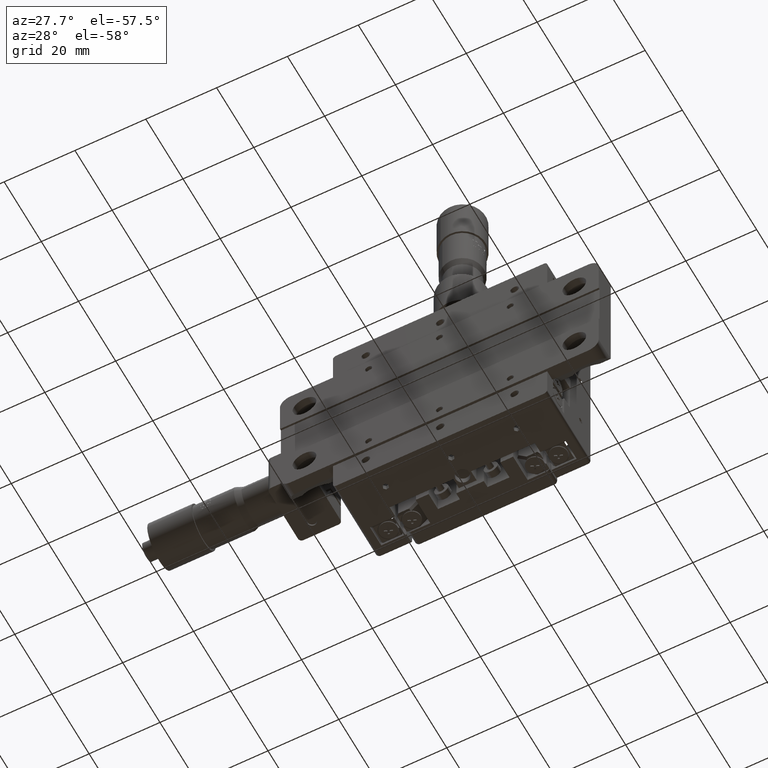
[diagram: clean part render]
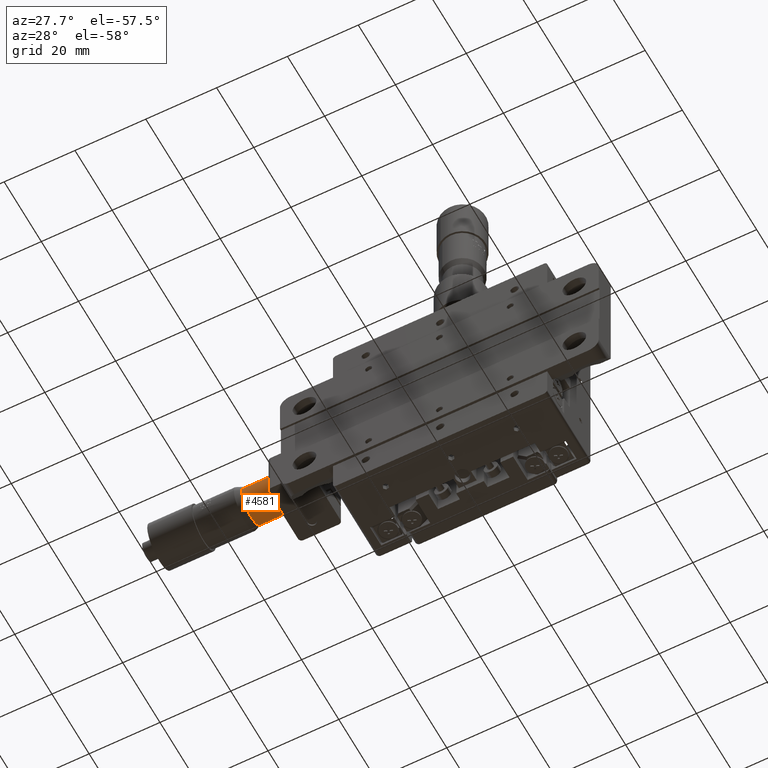
[diagram: same view with one face highlighted and labeled with its STEP entity id]
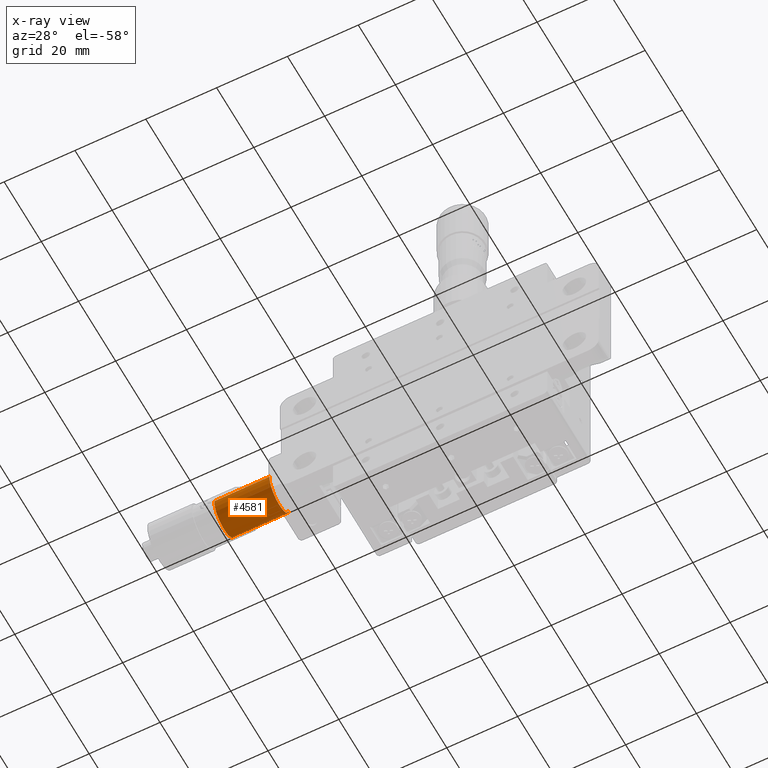
[diagram: x-ray of the same camera — body ghosted, the highlighted face saturated]
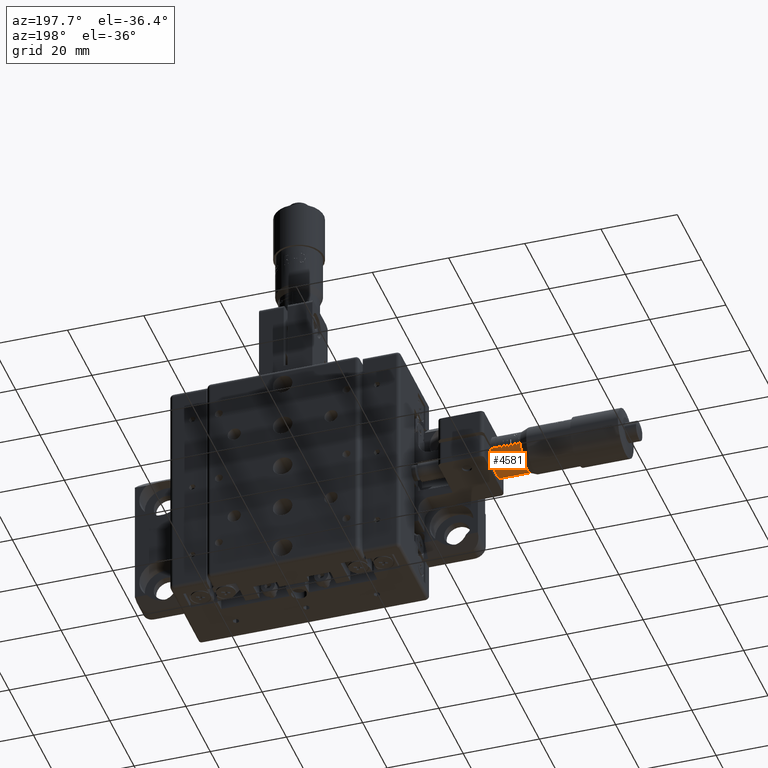
[diagram: same view with one face highlighted and labeled with its STEP entity id]
A machine part, auxiliary view. The second image highlights one B-rep face of the part: STEP entity #4581.
The next image is the same camera in x-ray: the body ghosted, the highlighted face saturated — about 0% of this face is hidden behind the body in this view.
A second angle (auxiliary view) of the same face is appended — the face is thin or edge-on in the first view.
In plain terms, the highlighted cylindrical surface (edge-blend (fillet) strip) has radius 5.25 mm, axis along (-1, 0, 0).
Its self-contained STEP definition (entity closure, byte-faithful):
#55 = DIRECTION ( 'NONE',  ( 0.0000000000000000000, -0.1427666216937470400, -0.9897563799896187400 ) ) ;
#102 = VECTOR ( 'NONE', #37513, 1000.000000000000000 ) ;
#452 = CARTESIAN_POINT ( 'NONE',  ( -63.94996118404331000, 12.79999999999885900, 7.622174488846822400E-015 ) ) ;
#559 = CARTESIAN_POINT ( 'NONE',  ( -113.4410230692089200, 17.98060451908254000, -0.8507859994440224400 ) ) ;
#595 = CARTESIAN_POINT ( 'NONE',  ( -58.94998059202228500, 17.72296880392125100, -1.823973178423176700 ) ) ;
#612 = CARTESIAN_POINT ( 'NONE',  ( -64.94995730244745900, 17.98060451908253700, -0.8507859994439671600 ) ) ;
#688 = CARTESIAN_POINT ( 'NONE',  ( -113.4410230692089200, 17.98060451908253700, -0.8507859994439939100 ) ) ;
#708 = DIRECTION ( 'NONE',  ( -1.000000000000000000, 1.110223109048926400E-016, 1.084206333179616900E-017 ) ) ;
#1405 = LINE ( 'NONE', #47349, #13862 ) ;
#1556 = CIRCLE ( 'NONE', #41843, 5.249999999999996400 ) ;
#1575 = CIRCLE ( 'NONE', #28516, 5.249999999999995600 ) ;
#1679 = ORIENTED_EDGE ( 'NONE', *, *, #38592, .F. ) ;
#1745 = CARTESIAN_POINT ( 'NONE',  ( -65.84995342085167600, 17.72296880392126900, -1.823973178423123000 ) ) ;
#1782 = CARTESIAN_POINT ( 'NONE',  ( -61.84996894723487100, 17.98060451908252600, -0.8507859994439652700 ) ) ;
#1948 = ORIENTED_EDGE ( 'NONE', *, *, #19271, .F. ) ;
#2041 = CARTESIAN_POINT ( 'NONE',  ( -58.84998059202228400, 17.98060451908252900, -0.8507859994439936900 ) ) ;
#2051 = ORIENTED_EDGE ( 'NONE', *, *, #47968, .F. ) ;
#2106 = DIRECTION ( 'NONE',  ( 1.000000000000000000, -1.110223109048926400E-016, -1.084206333179616900E-017 ) ) ;
#2149 = EDGE_CURVE ( 'NONE', #37718, #68449, #21597, .T. ) ;
#2236 = CARTESIAN_POINT ( 'NONE',  ( -64.94995730244745900, 17.72296880392126500, -1.823973178423094400 ) ) ;
#2254 = CARTESIAN_POINT ( 'NONE',  ( -113.4410230692089200, 17.98060451908254000, -0.8507859994440224400 ) ) ;
#2351 = VERTEX_POINT ( 'NONE', #39727 ) ;
#2363 = CARTESIAN_POINT ( 'NONE',  ( -57.84998447361808600, 17.72296880392125100, -1.823973178423176700 ) ) ;
#2514 = DIRECTION ( 'NONE',  ( -1.000000000000000000, 1.110223109048926400E-016, 1.084206333179616900E-017 ) ) ;
#2553 = DIRECTION ( 'NONE',  ( 0.0000000000000000000, -0.1427666216937470400, -0.9897563799896187400 ) ) ;
#2561 = EDGE_CURVE ( 'NONE', #51580, #11979, #12759, .T. ) ;
#2614 = VERTEX_POINT ( 'NONE', #35026 ) ;
#2794 = CARTESIAN_POINT ( 'NONE',  ( -67.60000000000130200, 17.98884700223480900, -0.7989785900681395400 ) ) ;
#3076 = CIRCLE ( 'NONE', #20697, 5.249999999999995600 ) ;
#3108 = VERTEX_POINT ( 'NONE', #28530 ) ;
#3319 = DIRECTION ( 'NONE',  ( -1.000000000000000000, 2.158313242761228300E-016, -4.276029427779920900E-018 ) ) ;
#3626 = LINE ( 'NONE', #36766, #26869 ) ;
#3639 = CARTESIAN_POINT ( 'NONE',  ( -113.4410230692089200, 17.98884700223483100, -0.7989785900680289600 ) ) ;
#3670 = EDGE_CURVE ( 'NONE', #13514, #45809, #39925, .T. ) ;
#3673 = CARTESIAN_POINT ( 'NONE',  ( -113.4410230692089200, 17.72296880392126500, -1.823973178423205400 ) ) ;
#3848 = DIRECTION ( 'NONE',  ( -1.000000000000000000, 2.158313242761228300E-016, -4.276029427779920900E-018 ) ) ;
#4032 = LINE ( 'NONE', #688, #18161 ) ;
#4136 = DIRECTION ( 'NONE',  ( 0.0000000000000000000, 0.1427666216937417400, 0.9897563799896195200 ) ) ;
#4153 = DIRECTION ( 'NONE',  ( 1.321694076934710800E-015, -0.1427666216937575600, -0.9897563799896170700 ) ) ;
#4200 = VERTEX_POINT ( 'NONE', #40786 ) ;
#4480 = EDGE_CURVE ( 'NONE', #6429, #65133, #19118, .T. ) ;
#4581 = ADVANCED_FACE ( 'NONE', ( #10756, #67191, #38900, #24889, #65519, #51458, #37274, #23229, #9095, #63892, #49730, #35606, #21569, #7395 ), #14894, .T. ) ;
#4628 = LINE ( 'NONE', #8442, #56094 ) ;
#4650 = VECTOR ( 'NONE', #6821, 1000.000000000000000 ) ;
#4722 = VERTEX_POINT ( 'NONE', #52173 ) ;
#4732 = AXIS2_PLACEMENT_3D ( 'NONE', #38224, #6483, #43550 ) ;
#4805 = CARTESIAN_POINT ( 'NONE',  ( -65.94995342085167100, 17.72296880392126900, -1.823973178423123000 ) ) ;
#4966 = DIRECTION ( 'NONE',  ( -1.000000000000000000, 1.110223109048926400E-016, 1.084206333179616900E-017 ) ) ;
#5155 = EDGE_CURVE ( 'NONE', #51381, #14267, #6409, .T. ) ;
#5179 = CARTESIAN_POINT ( 'NONE',  ( -113.4410230692089200, 17.98060451908253700, -0.8507859994439939100 ) ) ;
#5478 = CARTESIAN_POINT ( 'NONE',  ( -52.19064518190960200, 17.98884700223482400, -0.7989785900680296300 ) ) ;
#5766 = DIRECTION ( 'NONE',  ( 0.0000000000000000000, 0.1427666216937523400, 0.9897563799896179600 ) ) ;
#5814 = CARTESIAN_POINT ( 'NONE',  ( -62.84996506563908300, 17.72296880392127200, -1.823973178423095300 ) ) ;
#6177 = AXIS2_PLACEMENT_3D ( 'NONE', #9247, #46326, #14583 ) ;
#6212 = DIRECTION ( 'NONE',  ( 1.000000000000000000, -1.110223109048926400E-016, -1.084206333179616900E-017 ) ) ;
#6350 = EDGE_LOOP ( 'NONE', ( #29049, #68633, #24946, #53333 ) ) ;
#6409 = CIRCLE ( 'NONE', #32058, 5.249999999999995600 ) ;
#6429 = VERTEX_POINT ( 'NONE', #18062 ) ;
#6483 = DIRECTION ( 'NONE',  ( 1.000000000000000000, -2.158313242761228300E-016, 4.276029427779920900E-018 ) ) ;
#6584 = EDGE_CURVE ( 'NONE', #49991, #53152, #10000, .T. ) ;
#6729 = ORIENTED_EDGE ( 'NONE', *, *, #63630, .F. ) ;
#6774 = CARTESIAN_POINT ( 'NONE',  ( -52.00000000000131500, 12.79999999999884800, -1.032024017498336000E-013 ) ) ;
#6821 = DIRECTION ( 'NONE',  ( -1.000000000000000000, 1.110223109048926400E-016, 1.084206333179616900E-017 ) ) ;
#7165 = VECTOR ( 'NONE', #26009, 1000.000000000000000 ) ;
#7395 = FACE_BOUND ( 'NONE', #16672, .T. ) ;
#7526 = EDGE_CURVE ( 'NONE', #46576, #13130, #42073, .T. ) ;
#7575 = DIRECTION ( 'NONE',  ( 1.000000000000000000, -1.110223109048926400E-016, -1.084206333179616900E-017 ) ) ;
#7690 = EDGE_CURVE ( 'NONE', #65133, #2614, #33754, .T. ) ;
#7714 = EDGE_CURVE ( 'NONE', #15304, #27575, #67844, .T. ) ;
#7990 = CARTESIAN_POINT ( 'NONE',  ( -59.84997671042647500, 17.98060451908252900, -0.8507859994439936900 ) ) ;
#8014 = VERTEX_POINT ( 'NONE', #595 ) ;
#8064 = VERTEX_POINT ( 'NONE', #27494 ) ;
#8225 = DIRECTION ( 'NONE',  ( 1.000000000000000000, -2.158313242761228300E-016, 4.276029427779920900E-018 ) ) ;
#8299 = CARTESIAN_POINT ( 'NONE',  ( -67.60000000000133000, 7.603779005053360700, 0.7495247638921793700 ) ) ;
#8351 = EDGE_CURVE ( 'NONE', #29320, #6429, #4628, .T. ) ;
#8353 = VECTOR ( 'NONE', #8986, 1000.000000000000000 ) ;
#8442 = CARTESIAN_POINT ( 'NONE',  ( -113.4410230692089200, 17.72296880392126500, -1.823973178423205400 ) ) ;
#8677 = ORIENTED_EDGE ( 'NONE', *, *, #43137, .F. ) ;
#8911 = AXIS2_PLACEMENT_3D ( 'NONE', #19736, #56815, #25024 ) ;
#8918 = EDGE_LOOP ( 'NONE', ( #64285, #29498, #12551, #1948 ) ) ;
#8986 = DIRECTION ( 'NONE',  ( 1.000000000000000000, -1.110223109048926400E-016, -1.084206333179616900E-017 ) ) ;
#9014 = DIRECTION ( 'NONE',  ( -1.000000000000000000, 1.110223109048926400E-016, 1.084206333179616900E-017 ) ) ;
#9095 = FACE_BOUND ( 'NONE', #23520, .T. ) ;
#9247 = CARTESIAN_POINT ( 'NONE',  ( -57.94998447361810900, 12.79999999999884600, -7.476594357173244200E-014 ) ) ;
#9319 = DIRECTION ( 'NONE',  ( 1.000000000000000000, -2.158313242761228300E-016, 4.276029427779920900E-018 ) ) ;
#9590 = DIRECTION ( 'NONE',  ( 1.000000000000000000, -2.158313242761228300E-016, 4.276029427779920900E-018 ) ) ;
#9750 = AXIS2_PLACEMENT_3D ( 'NONE', #46550, #14823, #51941 ) ;
#9853 = AXIS2_PLACEMENT_3D ( 'NONE', #6774, #43862, #12117 ) ;
#10000 = LINE ( 'NONE', #3639, #8353 ) ;
#10203 = EDGE_CURVE ( 'NONE', #14267, #19645, #25961, .T. ) ;
#10294 = EDGE_CURVE ( 'NONE', #65968, #37718, #56674, .T. ) ;
#10574 = LINE ( 'NONE', #37235, #23039 ) ;
#10756 = FACE_OUTER_BOUND ( 'NONE', #60876, .T. ) ;
#10987 = CIRCLE ( 'NONE', #12436, 5.249999999999996400 ) ;
#11388 = CARTESIAN_POINT ( 'NONE',  ( -61.94996894723487200, 17.72296880392126500, -1.823973178423094400 ) ) ;
#11411 = VERTEX_POINT ( 'NONE', #53696 ) ;
#11416 = CARTESIAN_POINT ( 'NONE',  ( -54.94999611840548700, 17.72296880392124100, -1.823973178423203400 ) ) ;
#11618 = CIRCLE ( 'NONE', #9750, 5.249999999999995600 ) ;
#11979 = VERTEX_POINT ( 'NONE', #37424 ) ;
#12117 = DIRECTION ( 'NONE',  ( 0.0000000000000000000, -0.9897563799896187400, 0.1427666216937470400 ) ) ;
#12223 = EDGE_CURVE ( 'NONE', #63759, #50563, #42059, .T. ) ;
#12390 = CARTESIAN_POINT ( 'NONE',  ( -60.84997282883068000, 17.72296880392124800, -1.823973178423148300 ) ) ;
#12436 = AXIS2_PLACEMENT_3D ( 'NONE', #51701, #19956, #57046 ) ;
#12551 = ORIENTED_EDGE ( 'NONE', *, *, #67090, .F. ) ;
#12577 = EDGE_CURVE ( 'NONE', #27575, #47537, #3076, .T. ) ;
#12595 = CARTESIAN_POINT ( 'NONE',  ( -113.4410230692089200, 7.603779005053389100, 0.7495247638921768200 ) ) ;
#12759 = CIRCLE ( 'NONE', #59305, 5.249999999999997300 ) ;
#12894 = ORIENTED_EDGE ( 'NONE', *, *, #15488, .F. ) ;
#13043 = CIRCLE ( 'NONE', #23815, 5.249999999999995600 ) ;
#13119 = VERTEX_POINT ( 'NONE', #44746 ) ;
#13130 = VERTEX_POINT ( 'NONE', #60768 ) ;
#13159 = CARTESIAN_POINT ( 'NONE',  ( -113.4410230692089200, 12.79999999999888300, 5.429264369909434200E-015 ) ) ;
#13272 = AXIS2_PLACEMENT_3D ( 'NONE', #29951, #67072, #35247 ) ;
#13311 = VERTEX_POINT ( 'NONE', #57550 ) ;
#13407 = LINE ( 'NONE', #3673, #68196 ) ;
#13514 = VERTEX_POINT ( 'NONE', #32386 ) ;
#13573 = ORIENTED_EDGE ( 'NONE', *, *, #7714, .F. ) ;
#13862 = VECTOR ( 'NONE', #41963, 1000.000000000000000 ) ;
#13875 = AXIS2_PLACEMENT_3D ( 'NONE', #50316, #18573, #55659 ) ;
#14043 = EDGE_CURVE ( 'NONE', #28634, #37163, #39767, .T. ) ;
#14093 = AXIS2_PLACEMENT_3D ( 'NONE', #67691, #35874, #4153 ) ;
#14267 = VERTEX_POINT ( 'NONE', #68253 ) ;
#14583 = DIRECTION ( 'NONE',  ( 0.0000000000000000000, 0.1427666216937470400, 0.9897563799896187400 ) ) ;
#14597 = CARTESIAN_POINT ( 'NONE',  ( -54.94999611840548700, 17.98060451908252600, -0.8507859994439935800 ) ) ;
#14752 = AXIS2_PLACEMENT_3D ( 'NONE', #13159, #2514, #34478 ) ;
#14823 = DIRECTION ( 'NONE',  ( -1.000000000000000000, 2.158313242761228300E-016, -4.276029427779920900E-018 ) ) ;
#14894 = CYLINDRICAL_SURFACE ( 'NONE', #14752, 5.249999999999995600 ) ;
#15172 = AXIS2_PLACEMENT_3D ( 'NONE', #19002, #56081, #24289 ) ;
#15225 = AXIS2_PLACEMENT_3D ( 'NONE', #35029, #3319, #40348 ) ;
#15246 = LINE ( 'NONE', #49998, #27688 ) ;
#15304 = VERTEX_POINT ( 'NONE', #44820 ) ;
#15488 = EDGE_CURVE ( 'NONE', #65300, #57551, #1405, .T. ) ;
#15773 = EDGE_CURVE ( 'NONE', #50496, #4200, #61111, .T. ) ;
#15921 = EDGE_CURVE ( 'NONE', #59721, #38131, #23754, .T. ) ;
#16118 = DIRECTION ( 'NONE',  ( 1.000000000000000000, -1.110223109048926400E-016, -1.084206333179616900E-017 ) ) ;
#16408 = VERTEX_POINT ( 'NONE', #58628 ) ;
#16660 = ORIENTED_EDGE ( 'NONE', *, *, #55801, .F. ) ;
#16672 = EDGE_LOOP ( 'NONE', ( #17612, #58813, #59026, #35042 ) ) ;
#16866 = VERTEX_POINT ( 'NONE', #46896 ) ;
#17612 = ORIENTED_EDGE ( 'NONE', *, *, #7690, .F. ) ;
#17633 = EDGE_CURVE ( 'NONE', #13130, #16866, #53694, .T. ) ;
#17976 = DIRECTION ( 'NONE',  ( -1.000000000000000000, 1.110223109048926400E-016, 1.084206333179616900E-017 ) ) ;
#18062 = CARTESIAN_POINT ( 'NONE',  ( -53.95000000000129600, 17.72296880392124100, -1.823973178423203400 ) ) ;
#18081 = VECTOR ( 'NONE', #7575, 1000.000000000000000 ) ;
#18161 = VECTOR ( 'NONE', #32408, 1000.000000000000000 ) ;
#18573 = DIRECTION ( 'NONE',  ( 1.000000000000000000, -2.158313242761228300E-016, 4.276029427779920900E-018 ) ) ;
#18723 = ORIENTED_EDGE ( 'NONE', *, *, #20012, .F. ) ;
#18979 = DIRECTION ( 'NONE',  ( -1.000000000000000000, 2.158313242761228300E-016, -4.276029427779920900E-018 ) ) ;
#19002 = CARTESIAN_POINT ( 'NONE',  ( -67.60000000000133000, 12.79999999999885900, 7.606566815457246500E-015 ) ) ;
#19118 = CIRCLE ( 'NONE', #23203, 5.249999999999995600 ) ;
#19196 = CARTESIAN_POINT ( 'NONE',  ( -58.94998059202228500, 17.98060451908252900, -0.8507859994439936900 ) ) ;
#19271 = EDGE_CURVE ( 'NONE', #45809, #55001, #42435, .T. ) ;
#19362 = DIRECTION ( 'NONE',  ( -1.000000000000000000, 2.158313242761228300E-016, -4.276029427779920900E-018 ) ) ;
#19645 = VERTEX_POINT ( 'NONE', #39865 ) ;
#19736 = CARTESIAN_POINT ( 'NONE',  ( -65.94995342085169900, 12.79999999999885900, 7.613622463186898300E-015 ) ) ;
#19956 = DIRECTION ( 'NONE',  ( -1.000000000000000000, 2.158313242761228300E-016, -4.276029427779920900E-018 ) ) ;
#20012 = EDGE_CURVE ( 'NONE', #38131, #41933, #25040, .T. ) ;
#20027 = CARTESIAN_POINT ( 'NONE',  ( -113.4410230692089200, 17.98060451908253700, -0.8507859994439939100 ) ) ;
#20100 = AXIS2_PLACEMENT_3D ( 'NONE', #53136, #21370, #58480 ) ;
#20229 = DIRECTION ( 'NONE',  ( 1.000000000000000000, -2.158313242761228300E-016, 4.276029427779920900E-018 ) ) ;
#20603 = VECTOR ( 'NONE', #36984, 1000.000000000000000 ) ;
#20658 = EDGE_LOOP ( 'NONE', ( #33170, #45099, #27534, #60127 ) ) ;
#20697 = AXIS2_PLACEMENT_3D ( 'NONE', #63605, #31774, #55 ) ;
#20770 = ORIENTED_EDGE ( 'NONE', *, *, #15773, .F. ) ;
#21099 = ORIENTED_EDGE ( 'NONE', *, *, #5155, .F. ) ;
#21370 = DIRECTION ( 'NONE',  ( -1.000000000000000000, 2.158313242761228300E-016, -4.276029427779920900E-018 ) ) ;
#21411 = EDGE_CURVE ( 'NONE', #4722, #3108, #24755, .T. ) ;
#21527 = AXIS2_PLACEMENT_3D ( 'NONE', #66113, #34288, #2553 ) ;
#21569 = FACE_BOUND ( 'NONE', #45571, .T. ) ;
#21597 = LINE ( 'NONE', #32388, #62218 ) ;
#21831 = CARTESIAN_POINT ( 'NONE',  ( -113.4410230692089200, 17.72296880392127600, -1.823973178423179000 ) ) ;
#21939 = CARTESIAN_POINT ( 'NONE',  ( -55.84999223680969000, 17.98060451908252600, -0.8507859994439936900 ) ) ;
#22163 = ORIENTED_EDGE ( 'NONE', *, *, #61682, .F. ) ;
#22164 = DIRECTION ( 'NONE',  ( 1.000000000000000000, -1.110223109048926400E-016, -1.084206333179616900E-017 ) ) ;
#22372 = VECTOR ( 'NONE', #62169, 1000.000000000000000 ) ;
#22504 = CARTESIAN_POINT ( 'NONE',  ( -113.4410230692089200, 17.98060451908255100, -0.8507859994439673800 ) ) ;
#22717 = CARTESIAN_POINT ( 'NONE',  ( -54.84999611840551400, 12.79999999999884800, -1.032145884171049600E-013 ) ) ;
#22820 = CARTESIAN_POINT ( 'NONE',  ( -113.4410230692089200, 17.98060451908255100, -0.8507859994439673800 ) ) ;
#23039 = VECTOR ( 'NONE', #42530, 1000.000000000000000 ) ;
#23203 = AXIS2_PLACEMENT_3D ( 'NONE', #28284, #65402, #33536 ) ;
#23229 = FACE_BOUND ( 'NONE', #20658, .T. ) ;
#23349 = ORIENTED_EDGE ( 'NONE', *, *, #56823, .F. ) ;
#23520 = EDGE_LOOP ( 'NONE', ( #16660, #67926, #29108, #28705 ) ) ;
#23754 = CIRCLE ( 'NONE', #20100, 5.249999999999995600 ) ;
#23815 = AXIS2_PLACEMENT_3D ( 'NONE', #39895, #8225, #45283 ) ;
#23830 = AXIS2_PLACEMENT_3D ( 'NONE', #35588, #3848, #40873 ) ;
#23873 = CARTESIAN_POINT ( 'NONE',  ( -113.4410230692089200, 17.98060451908253700, -0.8507859994439939100 ) ) ;
#23946 = EDGE_CURVE ( 'NONE', #47537, #67513, #43238, .T. ) ;
#24289 = DIRECTION ( 'NONE',  ( 0.0000000000000000000, -0.9897563799896187400, 0.1427666216937470400 ) ) ;
#24293 = VECTOR ( 'NONE', #2106, 1000.000000000000000 ) ;
#24363 = ORIENTED_EDGE ( 'NONE', *, *, #38337, .F. ) ;
#24541 = ORIENTED_EDGE ( 'NONE', *, *, #43224, .F. ) ;
#24621 = CARTESIAN_POINT ( 'NONE',  ( -65.84995342085167600, 17.98060451908253700, -0.8507859994439671600 ) ) ;
#24726 = EDGE_CURVE ( 'NONE', #53016, #13514, #37501, .T. ) ;
#24734 = VERTEX_POINT ( 'NONE', #62097 ) ;
#24755 = LINE ( 'NONE', #63075, #65381 ) ;
#24768 = CARTESIAN_POINT ( 'NONE',  ( -59.84997671042650300, 12.79999999999886700, -2.181283678464790300E-014 ) ) ;
#24770 = EDGE_CURVE ( 'NONE', #54539, #24734, #10987, .T. ) ;
#24825 = DIRECTION ( 'NONE',  ( -1.000000000000000000, 1.110223109048926400E-016, 1.084206333179616900E-017 ) ) ;
#24838 = CIRCLE ( 'NONE', #15172, 5.249999999999995600 ) ;
#24889 = FACE_BOUND ( 'NONE', #38907, .T. ) ;
#24946 = ORIENTED_EDGE ( 'NONE', *, *, #68099, .F. ) ;
#25024 = DIRECTION ( 'NONE',  ( 0.0000000000000000000, 0.1427666216937575600, 0.9897563799896170700 ) ) ;
#25040 = LINE ( 'NONE', #51038, #35748 ) ;
#25307 = ORIENTED_EDGE ( 'NONE', *, *, #46200, .F. ) ;
#25773 = CARTESIAN_POINT ( 'NONE',  ( -113.4410230692089200, 17.98060451908253700, -0.8507859994439939100 ) ) ;
#25833 = EDGE_CURVE ( 'NONE', #57551, #60005, #29757, .T. ) ;
#25839 = CARTESIAN_POINT ( 'NONE',  ( -53.95000000000129600, 17.98060451908251900, -0.8507859994440201100 ) ) ;
#25848 = LINE ( 'NONE', #559, #38220 ) ;
#25907 = AXIS2_PLACEMENT_3D ( 'NONE', #67668, #35851, #4136 ) ;
#25933 = VECTOR ( 'NONE', #62983, 1000.000000000000000 ) ;
#25961 = LINE ( 'NONE', #22820, #24293 ) ;
#26009 = DIRECTION ( 'NONE',  ( 1.000000000000000000, -1.110223109048926400E-016, -1.084206333179616900E-017 ) ) ;
#26135 = VERTEX_POINT ( 'NONE', #52632 ) ;
#26765 = EDGE_CURVE ( 'NONE', #68449, #51897, #40350, .T. ) ;
#26767 = CARTESIAN_POINT ( 'NONE',  ( -58.94998059202231400, 12.79999999999886700, -2.180898837476072000E-014 ) ) ;
#26869 = VECTOR ( 'NONE', #52843, 1000.000000000000000 ) ;
#27197 = CARTESIAN_POINT ( 'NONE',  ( -52.00000000000131500, 7.603779005053352700, 0.7495247638920682400 ) ) ;
#27440 = CARTESIAN_POINT ( 'NONE',  ( -62.94996506563907700, 17.72296880392127200, -1.823973178423095300 ) ) ;
#27494 = CARTESIAN_POINT ( 'NONE',  ( -54.84999611840548500, 17.98060451908252600, -0.8507859994439935800 ) ) ;
#27534 = ORIENTED_EDGE ( 'NONE', *, *, #21411, .F. ) ;
#27575 = VERTEX_POINT ( 'NONE', #21939 ) ;
#27688 = VECTOR ( 'NONE', #55348, 1000.000000000000000 ) ;
#28020 = DIRECTION ( 'NONE',  ( 0.0000000000000000000, -0.1427666216937585600, -0.9897563799896169600 ) ) ;
#28027 = VECTOR ( 'NONE', #17976, 1000.000000000000000 ) ;
#28042 = VECTOR ( 'NONE', #49113, 1000.000000000000000 ) ;
#28284 = CARTESIAN_POINT ( 'NONE',  ( -53.95000000000132400, 12.79999999999884800, -1.032107400072177600E-013 ) ) ;
#28307 = LINE ( 'NONE', #32179, #102 ) ;
#28516 = AXIS2_PLACEMENT_3D ( 'NONE', #24768, #61824, #30055 ) ;
#28530 = CARTESIAN_POINT ( 'NONE',  ( -59.94997671042647600, 17.72296880392124800, -1.823973178423148300 ) ) ;
#28634 = VERTEX_POINT ( 'NONE', #58663 ) ;
#28660 = EDGE_CURVE ( 'NONE', #51308, #11411, #45070, .T. ) ;
#28705 = ORIENTED_EDGE ( 'NONE', *, *, #24770, .F. ) ;
#28813 = CIRCLE ( 'NONE', #40038, 5.249999999999996400 ) ;
#28881 = CARTESIAN_POINT ( 'NONE',  ( -113.4410230692089200, 17.99622099494437700, -0.7495247638921654900 ) ) ;
#29049 = ORIENTED_EDGE ( 'NONE', *, *, #7526, .F. ) ;
#29108 = ORIENTED_EDGE ( 'NONE', *, *, #50313, .F. ) ;
#29165 = ORIENTED_EDGE ( 'NONE', *, *, #6584, .T. ) ;
#29320 = VERTEX_POINT ( 'NONE', #45082 ) ;
#29490 = ORIENTED_EDGE ( 'NONE', *, *, #14043, .F. ) ;
#29498 = ORIENTED_EDGE ( 'NONE', *, *, #24726, .F. ) ;
#29757 = CIRCLE ( 'NONE', #13875, 5.249999999999996400 ) ;
#29891 = VERTEX_POINT ( 'NONE', #5814 ) ;
#29951 = CARTESIAN_POINT ( 'NONE',  ( -61.84996894723489900, 12.79999999999885900, 7.631154117449524500E-015 ) ) ;
#30055 = DIRECTION ( 'NONE',  ( 0.0000000000000000000, -0.1427666216937523400, -0.9897563799896179600 ) ) ;
#30303 = EDGE_CURVE ( 'NONE', #41159, #51580, #60496, .T. ) ;
#30532 = CARTESIAN_POINT ( 'NONE',  ( -63.84996118404329500, 12.79999999999885900, 7.622602091789598900E-015 ) ) ;
#30826 = AXIS2_PLACEMENT_3D ( 'NONE', #26767, #63895, #32038 ) ;
#31164 = CARTESIAN_POINT ( 'NONE',  ( -113.4410230692089200, 17.72296880392126900, -1.823973178423178100 ) ) ;
#31175 = CARTESIAN_POINT ( 'NONE',  ( -113.4410230692089200, 17.98060451908255100, -0.8507859994439673800 ) ) ;
#31575 = CARTESIAN_POINT ( 'NONE',  ( -60.84997282883068000, 17.98060451908252600, -0.8507859994439652700 ) ) ;
#31666 = CARTESIAN_POINT ( 'NONE',  ( -59.94997671042650500, 12.79999999999885000, 8.629920981118841700E-015 ) ) ;
#31774 = DIRECTION ( 'NONE',  ( -1.000000000000000000, 2.158313242761228300E-016, -4.276029427779920900E-018 ) ) ;
#32038 = DIRECTION ( 'NONE',  ( 0.0000000000000000000, 0.1427666216937523400, 0.9897563799896179600 ) ) ;
#32058 = AXIS2_PLACEMENT_3D ( 'NONE', #452, #37518, #5766 ) ;
#32138 = ORIENTED_EDGE ( 'NONE', *, *, #23946, .F. ) ;
#32179 = CARTESIAN_POINT ( 'NONE',  ( -113.4410230692089200, 17.72296880392126500, -1.823973178423205400 ) ) ;
#32230 = VECTOR ( 'NONE', #40942, 1000.000000000000000 ) ;
#32386 = CARTESIAN_POINT ( 'NONE',  ( -65.94995342085167100, 17.98060451908253700, -0.8507859994439671600 ) ) ;
#32388 = CARTESIAN_POINT ( 'NONE',  ( -113.4410230692089200, 17.98060451908253700, -0.8507859994439939100 ) ) ;
#32408 = DIRECTION ( 'NONE',  ( 1.000000000000000000, -1.110223109048926400E-016, -1.084206333179616900E-017 ) ) ;
#32809 = LINE ( 'NONE', #33437, #4650 ) ;
#33170 = ORIENTED_EDGE ( 'NONE', *, *, #65438, .F. ) ;
#33187 = VECTOR ( 'NONE', #708, 1000.000000000000000 ) ;
#33437 = CARTESIAN_POINT ( 'NONE',  ( -113.4410230692089200, 17.72296880392126900, -1.823973178423178100 ) ) ;
#33536 = DIRECTION ( 'NONE',  ( -1.321694076934711200E-015, 0.1427666216937364700, 0.9897563799896202900 ) ) ;
#33754 = LINE ( 'NONE', #2254, #18081 ) ;
#33907 = EDGE_LOOP ( 'NONE', ( #61558, #51139, #55883, #66721 ) ) ;
#34033 = CARTESIAN_POINT ( 'NONE',  ( -113.4410230692089200, 17.72296880392126500, -1.823973178423205400 ) ) ;
#34288 = DIRECTION ( 'NONE',  ( -1.000000000000000000, 2.158313242761228300E-016, -4.276029427779920900E-018 ) ) ;
#34478 = DIRECTION ( 'NONE',  ( 0.0000000000000000000, -0.9897563799896187400, 0.1427666216937470400 ) ) ;
#34529 = VERTEX_POINT ( 'NONE', #2236 ) ;
#34543 = ORIENTED_EDGE ( 'NONE', *, *, #40462, .T. ) ;
#34710 = EDGE_CURVE ( 'NONE', #68234, #4722, #1575, .T. ) ;
#35026 = CARTESIAN_POINT ( 'NONE',  ( -53.85000000000129500, 17.98060451908251900, -0.8507859994440201100 ) ) ;
#35029 = CARTESIAN_POINT ( 'NONE',  ( -62.84996506563911100, 12.79999999999885900, 7.626878104619563300E-015 ) ) ;
#35042 = ORIENTED_EDGE ( 'NONE', *, *, #66860, .F. ) ;
#35099 = EDGE_CURVE ( 'NONE', #13119, #29891, #68182, .T. ) ;
#35247 = DIRECTION ( 'NONE',  ( 0.0000000000000000000, -0.1427666216937470400, -0.9897563799896187400 ) ) ;
#35366 = LINE ( 'NONE', #25773, #7165 ) ;
#35423 = EDGE_CURVE ( 'NONE', #29891, #51308, #47338, .T. ) ;
#35588 = CARTESIAN_POINT ( 'NONE',  ( -65.84995342085170500, 12.79999999999885900, 7.614050066129676400E-015 ) ) ;
#35606 = FACE_BOUND ( 'NONE', #47565, .T. ) ;
#35748 = VECTOR ( 'NONE', #24825, 1000.000000000000000 ) ;
#35828 = DIRECTION ( 'NONE',  ( 0.0000000000000000000, -0.1427666216937417400, -0.9897563799896195200 ) ) ;
#35851 = DIRECTION ( 'NONE',  ( 1.000000000000000000, -2.158313242761228300E-016, 4.276029427779920900E-018 ) ) ;
#35865 = EDGE_CURVE ( 'NONE', #3108, #13311, #1556, .T. ) ;
#35874 = DIRECTION ( 'NONE',  ( -1.000000000000000000, -3.182928596191958100E-017, -1.721229657293591800E-015 ) ) ;
#36186 = CARTESIAN_POINT ( 'NONE',  ( -55.84999223680969000, 17.72296880392125500, -1.823973178423205400 ) ) ;
#36373 = EDGE_CURVE ( 'NONE', #8014, #61566, #45410, .T. ) ;
#36394 = CARTESIAN_POINT ( 'NONE',  ( -55.94999223680969200, 17.72296880392125500, -1.823973178423205400 ) ) ;
#36560 = ORIENTED_EDGE ( 'NONE', *, *, #35099, .F. ) ;
#36766 = CARTESIAN_POINT ( 'NONE',  ( -113.4410230692089200, 17.72296880392126900, -1.823973178423178100 ) ) ;
#36984 = DIRECTION ( 'NONE',  ( -1.000000000000000000, 1.110223109048926400E-016, 1.084206333179616900E-017 ) ) ;
#37003 = DIRECTION ( 'NONE',  ( 0.0000000000000000000, 0.1427666216937417400, 0.9897563799896195200 ) ) ;
#37157 = CARTESIAN_POINT ( 'NONE',  ( -60.94997282883068100, 17.72296880392124800, -1.823973178423148300 ) ) ;
#37163 = VERTEX_POINT ( 'NONE', #52183 ) ;
#37235 = CARTESIAN_POINT ( 'NONE',  ( -113.4410230692089200, 17.98060451908253700, -0.8507859994439939100 ) ) ;
#37274 = FACE_BOUND ( 'NONE', #33907, .T. ) ;
#37298 = ORIENTED_EDGE ( 'NONE', *, *, #41292, .F. ) ;
#37424 = CARTESIAN_POINT ( 'NONE',  ( -56.84998835521388100, 17.72296880392125100, -1.823973178423176700 ) ) ;
#37501 = CIRCLE ( 'NONE', #8911, 5.249999999999997300 ) ;
#37513 = DIRECTION ( 'NONE',  ( -1.000000000000000000, 1.110223109048926400E-016, 1.084206333179616900E-017 ) ) ;
#37518 = DIRECTION ( 'NONE',  ( 1.000000000000000000, -2.158313242761228300E-016, 4.276029427779920900E-018 ) ) ;
#37718 = VERTEX_POINT ( 'NONE', #61313 ) ;
#38131 = VERTEX_POINT ( 'NONE', #2363 ) ;
#38220 = VECTOR ( 'NONE', #22164, 1000.000000000000000 ) ;
#38224 = CARTESIAN_POINT ( 'NONE',  ( -62.94996506563910500, 12.79999999999885900, 7.626450501676785200E-015 ) ) ;
#38304 = CARTESIAN_POINT ( 'NONE',  ( -57.94998447361808000, 17.72296880392125100, -1.823973178423176700 ) ) ;
#38337 = EDGE_CURVE ( 'NONE', #2351, #50496, #63005, .T. ) ;
#38509 = CARTESIAN_POINT ( 'NONE',  ( -63.94996118404328200, 17.72296880392126900, -1.823973178423066800 ) ) ;
#38539 = CIRCLE ( 'NONE', #61416, 5.249999999999995600 ) ;
#38592 = EDGE_CURVE ( 'NONE', #26135, #59721, #4032, .T. ) ;
#38900 = FACE_BOUND ( 'NONE', #6350, .T. ) ;
#38907 = EDGE_LOOP ( 'NONE', ( #42782, #21099, #44325, #23349 ) ) ;
#39063 = LINE ( 'NONE', #5179, #51617 ) ;
#39551 = CARTESIAN_POINT ( 'NONE',  ( -56.94998835521388300, 17.98060451908252900, -0.8507859994439936900 ) ) ;
#39727 = CARTESIAN_POINT ( 'NONE',  ( -61.94996894723487200, 17.98060451908252600, -0.8507859994439652700 ) ) ;
#39767 = LINE ( 'NONE', #28881, #66418 ) ;
#39865 = CARTESIAN_POINT ( 'NONE',  ( -63.84996118404326600, 17.98060451908253700, -0.8507859994439671600 ) ) ;
#39895 = CARTESIAN_POINT ( 'NONE',  ( -56.94998835521391100, 12.79999999999885000, -1.032235680457076500E-013 ) ) ;
#39925 = LINE ( 'NONE', #31175, #25933 ) ;
#40038 = AXIS2_PLACEMENT_3D ( 'NONE', #30532, #67648, #35828 ) ;
#40348 = DIRECTION ( 'NONE',  ( 0.0000000000000000000, -0.1427666216937311700, -0.9897563799896209600 ) ) ;
#40350 = CIRCLE ( 'NONE', #21527, 5.249999999999995600 ) ;
#40462 = EDGE_CURVE ( 'NONE', #28634, #63759, #45130, .T. ) ;
#40786 = CARTESIAN_POINT ( 'NONE',  ( -61.84996894723487100, 17.72296880392126500, -1.823973178423094400 ) ) ;
#40873 = DIRECTION ( 'NONE',  ( 0.0000000000000000000, -0.1427666216937301900, -0.9897563799896211800 ) ) ;
#40942 = DIRECTION ( 'NONE',  ( 1.000000000000000000, -1.110223109048926400E-016, -1.084206333179616900E-017 ) ) ;
#41014 = CARTESIAN_POINT ( 'NONE',  ( -60.94997282883071000, 12.79999999999885700, 7.635002527336707700E-015 ) ) ;
#41159 = VERTEX_POINT ( 'NONE', #39551 ) ;
#41214 = EDGE_CURVE ( 'NONE', #11979, #16408, #13407, .T. ) ;
#41266 = CARTESIAN_POINT ( 'NONE',  ( -61.94996894723490000, 12.79999999999885900, 7.630726514506746500E-015 ) ) ;
#41292 = EDGE_CURVE ( 'NONE', #67513, #15304, #66528, .T. ) ;
#41526 = ORIENTED_EDGE ( 'NONE', *, *, #47932, .F. ) ;
#41597 = ORIENTED_EDGE ( 'NONE', *, *, #48259, .T. ) ;
#41843 = AXIS2_PLACEMENT_3D ( 'NONE', #31666, #68802, #37003 ) ;
#41933 = VERTEX_POINT ( 'NONE', #38304 ) ;
#41963 = DIRECTION ( 'NONE',  ( -1.000000000000000000, 1.110223109048926400E-016, 1.084206333179616900E-017 ) ) ;
#42059 = LINE ( 'NONE', #12595, #28027 ) ;
#42073 = LINE ( 'NONE', #22504, #28042 ) ;
#42435 = CIRCLE ( 'NONE', #23830, 5.249999999999996400 ) ;
#42530 = DIRECTION ( 'NONE',  ( 1.000000000000000000, -1.110223109048926400E-016, -1.084206333179616900E-017 ) ) ;
#42782 = ORIENTED_EDGE ( 'NONE', *, *, #10203, .F. ) ;
#43137 = EDGE_CURVE ( 'NONE', #11411, #13119, #39063, .T. ) ;
#43224 = EDGE_CURVE ( 'NONE', #60005, #8064, #25848, .T. ) ;
#43238 = LINE ( 'NONE', #34033, #55766 ) ;
#43550 = DIRECTION ( 'NONE',  ( 0.0000000000000000000, 0.1427666216937417400, 0.9897563799896195200 ) ) ;
#43862 = DIRECTION ( 'NONE',  ( -1.000000000000000000, 1.110223109048926400E-016, 1.084206333179616900E-017 ) ) ;
#44133 = AXIS2_PLACEMENT_3D ( 'NONE', #51982, #20229, #57340 ) ;
#44325 = ORIENTED_EDGE ( 'NONE', *, *, #57142, .F. ) ;
#44746 = CARTESIAN_POINT ( 'NONE',  ( -62.84996506563908300, 17.98060451908253700, -0.8507859994439671600 ) ) ;
#44820 = CARTESIAN_POINT ( 'NONE',  ( -55.94999223680967800, 17.98060451908252600, -0.8507859994439936900 ) ) ;
#45070 = CIRCLE ( 'NONE', #4732, 5.249999999999996400 ) ;
#45082 = CARTESIAN_POINT ( 'NONE',  ( -53.85000000000129500, 17.72296880392124100, -1.823973178423203400 ) ) ;
#45099 = ORIENTED_EDGE ( 'NONE', *, *, #35865, .F. ) ;
#45117 = EDGE_CURVE ( 'NONE', #16408, #41159, #13043, .T. ) ;
#45124 = DIRECTION ( 'NONE',  ( 1.000000000000000000, -1.110223109048926400E-016, -1.084206333179616900E-017 ) ) ;
#45130 = CIRCLE ( 'NONE', #9853, 5.249999999999995600 ) ;
#45283 = DIRECTION ( 'NONE',  ( 0.0000000000000000000, 0.1427666216937364700, 0.9897563799896202900 ) ) ;
#45410 = CIRCLE ( 'NONE', #30826, 5.249999999999995600 ) ;
#45571 = EDGE_LOOP ( 'NONE', ( #24541, #66391, #12894, #25307 ) ) ;
#45591 = VECTOR ( 'NONE', #4966, 1000.000000000000000 ) ;
#45809 = VERTEX_POINT ( 'NONE', #24621 ) ;
#46200 = EDGE_CURVE ( 'NONE', #8064, #65300, #47655, .T. ) ;
#46326 = DIRECTION ( 'NONE',  ( 1.000000000000000000, -2.158313242761228300E-016, 4.276029427779920900E-018 ) ) ;
#46410 = DIRECTION ( 'NONE',  ( 0.0000000000000000000, 0.1427666216937470400, 0.9897563799896187400 ) ) ;
#46443 = EDGE_CURVE ( 'NONE', #51897, #65968, #3626, .T. ) ;
#46550 = CARTESIAN_POINT ( 'NONE',  ( -52.19064518190963000, 12.79999999999884800, -1.032032169542417000E-013 ) ) ;
#46576 = VERTEX_POINT ( 'NONE', #612 ) ;
#46655 = DIRECTION ( 'NONE',  ( 0.0000000000000000000, 0.1427666216937470400, 0.9897563799896187400 ) ) ;
#46896 = CARTESIAN_POINT ( 'NONE',  ( -64.84995730244746400, 17.72296880392126500, -1.823973178423094400 ) ) ;
#47138 = AXIS2_PLACEMENT_3D ( 'NONE', #41014, #9319, #46410 ) ;
#47338 = LINE ( 'NONE', #21831, #33187 ) ;
#47349 = CARTESIAN_POINT ( 'NONE',  ( -113.4410230692089200, 17.72296880392125100, -1.823973178423203800 ) ) ;
#47470 = DIRECTION ( 'NONE',  ( -1.000000000000000000, 1.110223109048926400E-016, 1.084206333179616900E-017 ) ) ;
#47537 = VERTEX_POINT ( 'NONE', #36186 ) ;
#47565 = EDGE_LOOP ( 'NONE', ( #13573, #37298, #32138, #51520 ) ) ;
#47655 = CIRCLE ( 'NONE', #63407, 5.249999999999997300 ) ;
#47932 = EDGE_CURVE ( 'NONE', #41933, #26135, #66399, .T. ) ;
#47968 = EDGE_CURVE ( 'NONE', #37163, #53152, #11618, .T. ) ;
#48259 = EDGE_CURVE ( 'NONE', #50563, #49991, #24838, .T. ) ;
#48421 = VERTEX_POINT ( 'NONE', #62759 ) ;
#48838 = VERTEX_POINT ( 'NONE', #11388 ) ;
#49055 = ORIENTED_EDGE ( 'NONE', *, *, #45117, .F. ) ;
#49113 = DIRECTION ( 'NONE',  ( 1.000000000000000000, -1.110223109048926400E-016, -1.084206333179616900E-017 ) ) ;
#49730 = FACE_BOUND ( 'NONE', #58183, .T. ) ;
#49991 = VERTEX_POINT ( 'NONE', #2794 ) ;
#49998 = CARTESIAN_POINT ( 'NONE',  ( -113.4410230692089200, 17.72296880392126900, -1.823973178423178100 ) ) ;
#50002 = ORIENTED_EDGE ( 'NONE', *, *, #15921, .F. ) ;
#50313 = EDGE_CURVE ( 'NONE', #24734, #8014, #28307, .T. ) ;
#50316 = CARTESIAN_POINT ( 'NONE',  ( -54.94999611840551500, 12.79999999999884800, -1.032150160200477200E-013 ) ) ;
#50443 = LINE ( 'NONE', #52838, #20603 ) ;
#50496 = VERTEX_POINT ( 'NONE', #1782 ) ;
#50563 = VERTEX_POINT ( 'NONE', #8299 ) ;
#50711 = CARTESIAN_POINT ( 'NONE',  ( -64.84995730244749300, 12.79999999999885900, 7.618326078959637600E-015 ) ) ;
#51013 = EDGE_LOOP ( 'NONE', ( #1679, #41526, #18723, #50002 ) ) ;
#51038 = CARTESIAN_POINT ( 'NONE',  ( -113.4410230692089200, 17.72296880392126500, -1.823973178423205400 ) ) ;
#51119 = CARTESIAN_POINT ( 'NONE',  ( -56.84998835521391000, 12.79999999999885000, -1.032231404427648700E-013 ) ) ;
#51139 = ORIENTED_EDGE ( 'NONE', *, *, #10294, .F. ) ;
#51308 = VERTEX_POINT ( 'NONE', #27440 ) ;
#51381 = VERTEX_POINT ( 'NONE', #38509 ) ;
#51458 = FACE_BOUND ( 'NONE', #64416, .T. ) ;
#51520 = ORIENTED_EDGE ( 'NONE', *, *, #12577, .F. ) ;
#51580 = VERTEX_POINT ( 'NONE', #63026 ) ;
#51617 = VECTOR ( 'NONE', #16118, 1000.000000000000000 ) ;
#51701 = CARTESIAN_POINT ( 'NONE',  ( -58.84998059202231200, 12.79999999999886700, -2.180856077181794200E-014 ) ) ;
#51718 = ORIENTED_EDGE ( 'NONE', *, *, #2561, .F. ) ;
#51897 = VERTEX_POINT ( 'NONE', #12390 ) ;
#51941 = DIRECTION ( 'NONE',  ( 0.0000000000000000000, -0.1427666216939641500, -0.9897563799895875400 ) ) ;
#51982 = CARTESIAN_POINT ( 'NONE',  ( -64.94995730244748700, 12.79999999999885900, 7.617898476016859500E-015 ) ) ;
#52173 = CARTESIAN_POINT ( 'NONE',  ( -59.84997671042647500, 17.72296880392124800, -1.823973178423148300 ) ) ;
#52179 = AXIS2_PLACEMENT_3D ( 'NONE', #50711, #18979, #56059 ) ;
#52183 = CARTESIAN_POINT ( 'NONE',  ( -52.19064518190963000, 17.99622099494435900, -0.7495247638921647100 ) ) ;
#52632 = CARTESIAN_POINT ( 'NONE',  ( -57.94998447361808000, 17.98060451908252900, -0.8507859994439936900 ) ) ;
#52838 = CARTESIAN_POINT ( 'NONE',  ( -113.4410230692089200, 17.72296880392126200, -1.823973178423177000 ) ) ;
#52843 = DIRECTION ( 'NONE',  ( -1.000000000000000000, 1.110223109048926400E-016, 1.084206333179616900E-017 ) ) ;
#53016 = VERTEX_POINT ( 'NONE', #4805 ) ;
#53136 = CARTESIAN_POINT ( 'NONE',  ( -57.84998447361811500, 12.79999999999884600, -7.476551596878966400E-014 ) ) ;
#53152 = VERTEX_POINT ( 'NONE', #5478 ) ;
#53333 = ORIENTED_EDGE ( 'NONE', *, *, #17633, .F. ) ;
#53694 = CIRCLE ( 'NONE', #52179, 5.249999999999996400 ) ;
#53696 = CARTESIAN_POINT ( 'NONE',  ( -62.94996506563907700, 17.98060451908253700, -0.8507859994439671600 ) ) ;
#53744 = VECTOR ( 'NONE', #45124, 1000.000000000000000 ) ;
#54539 = VERTEX_POINT ( 'NONE', #2041 ) ;
#55001 = VERTEX_POINT ( 'NONE', #1745 ) ;
#55222 = DIRECTION ( 'NONE',  ( -1.000000000000000000, 1.110223109048926400E-016, 1.084206333179616900E-017 ) ) ;
#55348 = DIRECTION ( 'NONE',  ( -1.000000000000000000, 1.110223109048926400E-016, 1.084206333179616900E-017 ) ) ;
#55659 = DIRECTION ( 'NONE',  ( 0.0000000000000000000, 0.1427666216937311700, 0.9897563799896209600 ) ) ;
#55766 = VECTOR ( 'NONE', #55222, 1000.000000000000000 ) ;
#55801 = EDGE_CURVE ( 'NONE', #61566, #54539, #35366, .T. ) ;
#55883 = ORIENTED_EDGE ( 'NONE', *, *, #46443, .F. ) ;
#56059 = DIRECTION ( 'NONE',  ( 0.0000000000000000000, -0.1427666216937417400, -0.9897563799896195200 ) ) ;
#56081 = DIRECTION ( 'NONE',  ( 1.000000000000000000, -1.110223109048926400E-016, -1.084206333179616900E-017 ) ) ;
#56094 = VECTOR ( 'NONE', #47470, 1000.000000000000000 ) ;
#56466 = DIRECTION ( 'NONE',  ( 0.0000000000000000000, -0.1427666216937575600, -0.9897563799896170700 ) ) ;
#56674 = CIRCLE ( 'NONE', #47138, 5.249999999999995600 ) ;
#56815 = DIRECTION ( 'NONE',  ( 1.000000000000000000, -2.158313242761228300E-016, 4.276029427779920900E-018 ) ) ;
#56822 = CARTESIAN_POINT ( 'NONE',  ( -54.84999611840548500, 17.72296880392124100, -1.823973178423203400 ) ) ;
#56823 = EDGE_CURVE ( 'NONE', #19645, #48421, #28813, .T. ) ;
#57046 = DIRECTION ( 'NONE',  ( 0.0000000000000000000, -0.1427666216937417400, -0.9897563799896195200 ) ) ;
#57142 = EDGE_CURVE ( 'NONE', #48421, #51381, #32809, .T. ) ;
#57315 = EDGE_LOOP ( 'NONE', ( #8677, #58502, #65967, #36560 ) ) ;
#57340 = DIRECTION ( 'NONE',  ( 0.0000000000000000000, 0.1427666216937470400, 0.9897563799896187400 ) ) ;
#57550 = CARTESIAN_POINT ( 'NONE',  ( -59.94997671042647600, 17.98060451908252900, -0.8507859994439936900 ) ) ;
#57551 = VERTEX_POINT ( 'NONE', #11416 ) ;
#57769 = DIRECTION ( 'NONE',  ( -1.000000000000000000, 1.110223109048926400E-016, 1.084206333179616900E-017 ) ) ;
#57798 = EDGE_CURVE ( 'NONE', #34529, #46576, #63509, .T. ) ;
#58183 = EDGE_LOOP ( 'NONE', ( #61301, #49055, #67500, #51718 ) ) ;
#58480 = DIRECTION ( 'NONE',  ( 0.0000000000000000000, -0.1427666216937470400, -0.9897563799896187400 ) ) ;
#58502 = ORIENTED_EDGE ( 'NONE', *, *, #28660, .F. ) ;
#58628 = CARTESIAN_POINT ( 'NONE',  ( -56.94998835521388300, 17.72296880392124100, -1.823973178423203400 ) ) ;
#58663 = CARTESIAN_POINT ( 'NONE',  ( -52.00000000000131500, 17.99622099494435900, -0.7495247638921647100 ) ) ;
#58813 = ORIENTED_EDGE ( 'NONE', *, *, #4480, .F. ) ;
#59026 = ORIENTED_EDGE ( 'NONE', *, *, #8351, .F. ) ;
#59305 = AXIS2_PLACEMENT_3D ( 'NONE', #51119, #19362, #56466 ) ;
#59721 = VERTEX_POINT ( 'NONE', #64302 ) ;
#59756 = LINE ( 'NONE', #31164, #45591 ) ;
#59806 = DIRECTION ( 'NONE',  ( -1.000000000000000000, 2.158313242761228300E-016, -4.276029427779920900E-018 ) ) ;
#60005 = VERTEX_POINT ( 'NONE', #14597 ) ;
#60127 = ORIENTED_EDGE ( 'NONE', *, *, #34710, .F. ) ;
#60496 = LINE ( 'NONE', #67692, #32230 ) ;
#60768 = CARTESIAN_POINT ( 'NONE',  ( -64.84995730244746400, 17.98060451908253700, -0.8507859994439671600 ) ) ;
#60876 = EDGE_LOOP ( 'NONE', ( #29490, #34543, #64975, #41597, #29165, #2051 ) ) ;
#61111 = CIRCLE ( 'NONE', #13272, 5.249999999999995600 ) ;
#61301 = ORIENTED_EDGE ( 'NONE', *, *, #30303, .F. ) ;
#61313 = CARTESIAN_POINT ( 'NONE',  ( -60.94997282883068100, 17.98060451908252600, -0.8507859994439652700 ) ) ;
#61416 = AXIS2_PLACEMENT_3D ( 'NONE', #41266, #9590, #46655 ) ;
#61558 = ORIENTED_EDGE ( 'NONE', *, *, #2149, .F. ) ;
#61566 = VERTEX_POINT ( 'NONE', #19196 ) ;
#61682 = EDGE_CURVE ( 'NONE', #4200, #48838, #59756, .T. ) ;
#61824 = DIRECTION ( 'NONE',  ( -1.000000000000000000, 2.158313242761228300E-016, -4.276029427779920900E-018 ) ) ;
#62097 = CARTESIAN_POINT ( 'NONE',  ( -58.84998059202228400, 17.72296880392125100, -1.823973178423176700 ) ) ;
#62169 = DIRECTION ( 'NONE',  ( 1.000000000000000000, -1.110223109048926400E-016, -1.084206333179616900E-017 ) ) ;
#62218 = VECTOR ( 'NONE', #6212, 1000.000000000000000 ) ;
#62759 = CARTESIAN_POINT ( 'NONE',  ( -63.84996118404326600, 17.72296880392126900, -1.823973178423066800 ) ) ;
#62983 = DIRECTION ( 'NONE',  ( 1.000000000000000000, -1.110223109048926400E-016, -1.084206333179616900E-017 ) ) ;
#63005 = LINE ( 'NONE', #20027, #22372 ) ;
#63026 = CARTESIAN_POINT ( 'NONE',  ( -56.84998835521388100, 17.98060451908252900, -0.8507859994439936900 ) ) ;
#63075 = CARTESIAN_POINT ( 'NONE',  ( -113.4410230692089200, 17.72296880392126200, -1.823973178423177000 ) ) ;
#63407 = AXIS2_PLACEMENT_3D ( 'NONE', #22717, #59806, #28020 ) ;
#63509 = CIRCLE ( 'NONE', #44133, 5.249999999999995600 ) ;
#63605 = CARTESIAN_POINT ( 'NONE',  ( -55.84999223680971900, 12.79999999999885000, -1.032188644299349100E-013 ) ) ;
#63630 = EDGE_CURVE ( 'NONE', #48838, #2351, #38539, .T. ) ;
#63759 = VERTEX_POINT ( 'NONE', #27197 ) ;
#63892 = FACE_BOUND ( 'NONE', #51013, .T. ) ;
#63895 = DIRECTION ( 'NONE',  ( 1.000000000000000000, -2.158313242761228300E-016, 4.276029427779920900E-018 ) ) ;
#64285 = ORIENTED_EDGE ( 'NONE', *, *, #3670, .F. ) ;
#64302 = CARTESIAN_POINT ( 'NONE',  ( -57.84998447361808600, 17.98060451908252900, -0.8507859994439936900 ) ) ;
#64416 = EDGE_LOOP ( 'NONE', ( #24363, #6729, #22163, #20770 ) ) ;
#64975 = ORIENTED_EDGE ( 'NONE', *, *, #12223, .T. ) ;
#65133 = VERTEX_POINT ( 'NONE', #25839 ) ;
#65300 = VERTEX_POINT ( 'NONE', #56822 ) ;
#65381 = VECTOR ( 'NONE', #57769, 1000.000000000000000 ) ;
#65402 = DIRECTION ( 'NONE',  ( 1.000000000000000000, 3.182928596191958100E-017, 1.721229657293591800E-015 ) ) ;
#65438 = EDGE_CURVE ( 'NONE', #13311, #68234, #10574, .T. ) ;
#65519 = FACE_BOUND ( 'NONE', #57315, .T. ) ;
#65967 = ORIENTED_EDGE ( 'NONE', *, *, #35423, .F. ) ;
#65968 = VERTEX_POINT ( 'NONE', #37157 ) ;
#65981 = DIRECTION ( 'NONE',  ( -1.000000000000000000, 1.110223109048926400E-016, 1.084206333179616900E-017 ) ) ;
#66113 = CARTESIAN_POINT ( 'NONE',  ( -60.84997282883070800, 12.79999999999885700, 7.635430130279487400E-015 ) ) ;
#66391 = ORIENTED_EDGE ( 'NONE', *, *, #25833, .F. ) ;
#66399 = CIRCLE ( 'NONE', #6177, 5.249999999999995600 ) ;
#66418 = VECTOR ( 'NONE', #65981, 1000.000000000000000 ) ;
#66528 = CIRCLE ( 'NONE', #25907, 5.249999999999996400 ) ;
#66721 = ORIENTED_EDGE ( 'NONE', *, *, #26765, .F. ) ;
#66738 = CIRCLE ( 'NONE', #14093, 5.249999999999997300 ) ;
#66860 = EDGE_CURVE ( 'NONE', #2614, #29320, #66738, .T. ) ;
#67072 = DIRECTION ( 'NONE',  ( -1.000000000000000000, 2.158313242761228300E-016, -4.276029427779920900E-018 ) ) ;
#67090 = EDGE_CURVE ( 'NONE', #55001, #53016, #15246, .T. ) ;
#67191 = FACE_BOUND ( 'NONE', #8918, .T. ) ;
#67500 = ORIENTED_EDGE ( 'NONE', *, *, #41214, .F. ) ;
#67513 = VERTEX_POINT ( 'NONE', #36394 ) ;
#67648 = DIRECTION ( 'NONE',  ( -1.000000000000000000, 2.158313242761228300E-016, -4.276029427779920900E-018 ) ) ;
#67668 = CARTESIAN_POINT ( 'NONE',  ( -55.94999223680970600, 12.79999999999885000, -1.032192920328776900E-013 ) ) ;
#67691 = CARTESIAN_POINT ( 'NONE',  ( -53.85000000000132300, 12.79999999999884800, -1.032103124042750000E-013 ) ) ;
#67692 = CARTESIAN_POINT ( 'NONE',  ( -113.4410230692089200, 17.98060451908253700, -0.8507859994439939100 ) ) ;
#67844 = LINE ( 'NONE', #23873, #53744 ) ;
#67926 = ORIENTED_EDGE ( 'NONE', *, *, #36373, .F. ) ;
#68099 = EDGE_CURVE ( 'NONE', #16866, #34529, #50443, .T. ) ;
#68182 = CIRCLE ( 'NONE', #15225, 5.249999999999996400 ) ;
#68196 = VECTOR ( 'NONE', #9014, 1000.000000000000000 ) ;
#68234 = VERTEX_POINT ( 'NONE', #7990 ) ;
#68253 = CARTESIAN_POINT ( 'NONE',  ( -63.94996118404328200, 17.98060451908253700, -0.8507859994439671600 ) ) ;
#68449 = VERTEX_POINT ( 'NONE', #31575 ) ;
#68633 = ORIENTED_EDGE ( 'NONE', *, *, #57798, .F. ) ;
#68802 = DIRECTION ( 'NONE',  ( 1.000000000000000000, -2.158313242761228300E-016, 4.276029427779920900E-018 ) ) ;